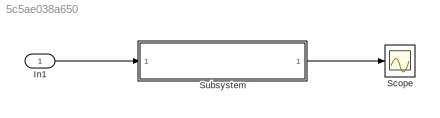
MODEL slx_5c5ae038a650
KIND model
CONFIG AbsTol = auto
CONFIG FixedStep = auto
CONFIG MaxStep = auto
CONFIG MinStep = auto
CONFIG RelTol = 1e-3
CONFIG SampleTimeConstraint = Unconstrained
CONFIG Solver = VariableStepAuto
CONFIG SolverMode = Auto
CONFIG SolverName = VariableStepAuto
CONFIG StartTime = 0.0
CONFIG StopTime = 120
BLOCK [Inport] In1
  IconDisplay = Port number
BLOCK [Scope] Scope
  Ports = [1]
  ScopeSpecificationString = Simulink.scopes.TimeScopeBlockCfg('CurrentConfiguration', extmgr.ConfigurationSet(extmgr.Configuration('Core','General UI',true),extmgr.Configuration('Core','Source UI',true),extmgr.Configuration('Sources','WiredSimulink',true),extmgr.Configuration('Visuals','Time Domain',true,'SerializedDisplays',{struct('MinYLimReal','-1.2469','MaxYLimReal','11.22211','YLabelReal','','MinYLimMag','0.00000','MaxY...<+1383ch>
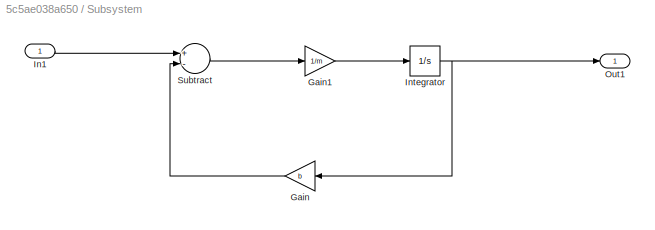
BLOCK [SubSystem] Subsystem
  Ports = [1, 1]
  RequestExecContextInheritance = off
  Variant = off
BLOCK [Gain] Subsystem/Gain
  Gain = b
  OutDataTypeStr = Inherit: Inherit via internal rule
  ParamDataTypeStr = Inherit: Inherit via internal rule
  SaturateOnIntegerOverflow = off
BLOCK [Gain] Subsystem/Gain1
  Gain = 1/m
  OutDataTypeStr = Inherit: Inherit via internal rule
  ParamDataTypeStr = Inherit: Inherit via internal rule
  SaturateOnIntegerOverflow = off
BLOCK [Inport] Subsystem/In1
  IconDisplay = Port number
BLOCK [Integrator] Subsystem/Integrator
  Ports = [1, 1]
BLOCK [Outport] Subsystem/Out1
  IconDisplay = Port number
BLOCK [Sum] Subsystem/Subtract
  InputSameDT = off
  Inputs = +-
  OutDataTypeStr = Inherit: Inherit via internal rule
  Ports = [2, 1]
  SaturateOnIntegerOverflow = off
LINE In1:1 -> Subsystem:1
LINE Subsystem/Gain1:1 -> Subsystem/Integrator:1
LINE Subsystem/Gain:1 -> Subsystem/Subtract:2
LINE Subsystem/In1:1 -> Subsystem/Subtract:1
NET Subsystem/Integrator:1 -> Subsystem/Gain:1, Subsystem/Out1:1
LINE Subsystem/Subtract:1 -> Subsystem/Gain1:1
LINE Subsystem:1 -> Scope:1
note: NET lines group one-source signal fan-out (src -> all destinations, sorted); 1:1 wires keep LINE
